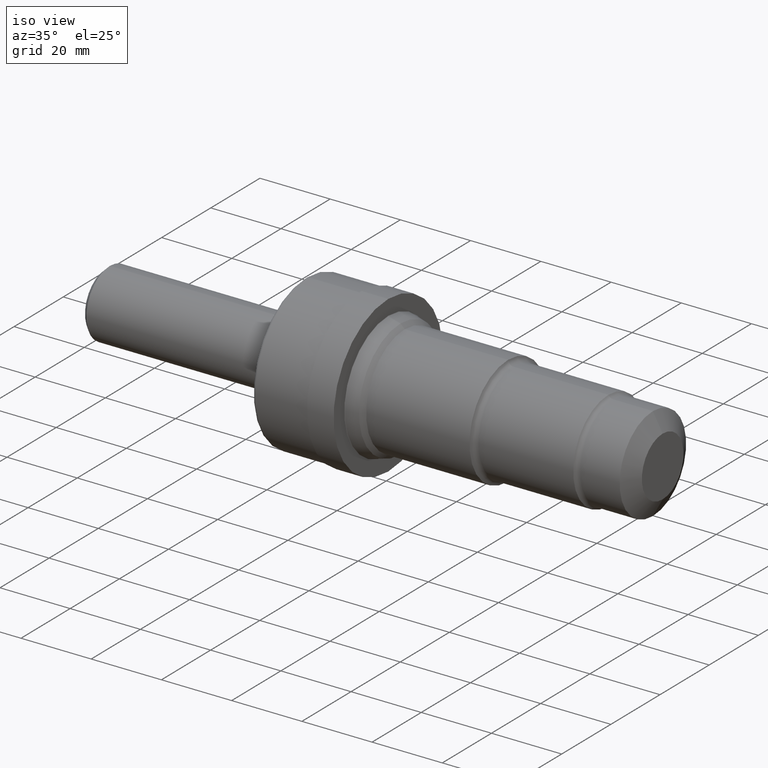
[diagram: clean part render]
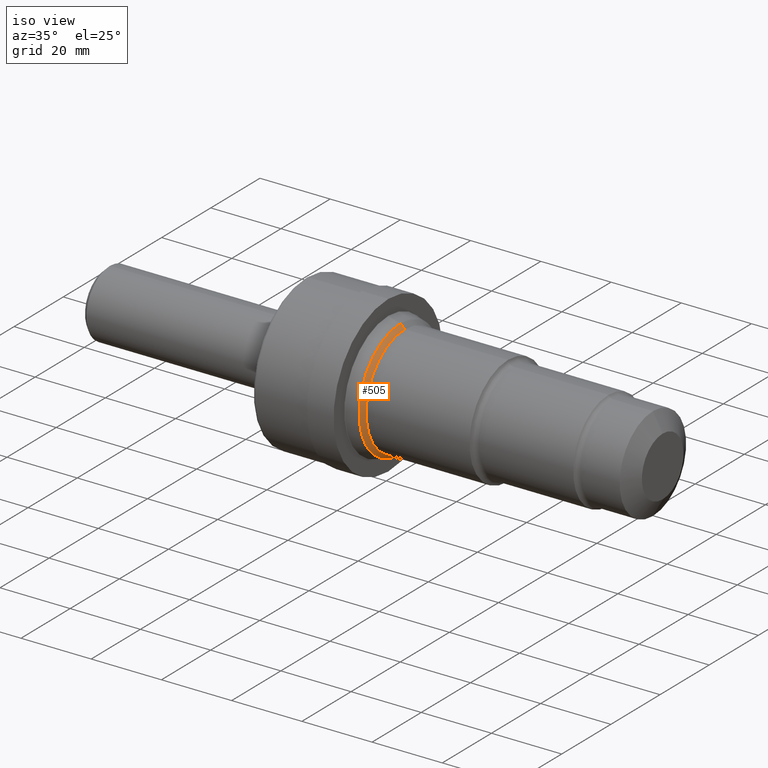
[diagram: same view with one face highlighted and labeled with its STEP entity id]
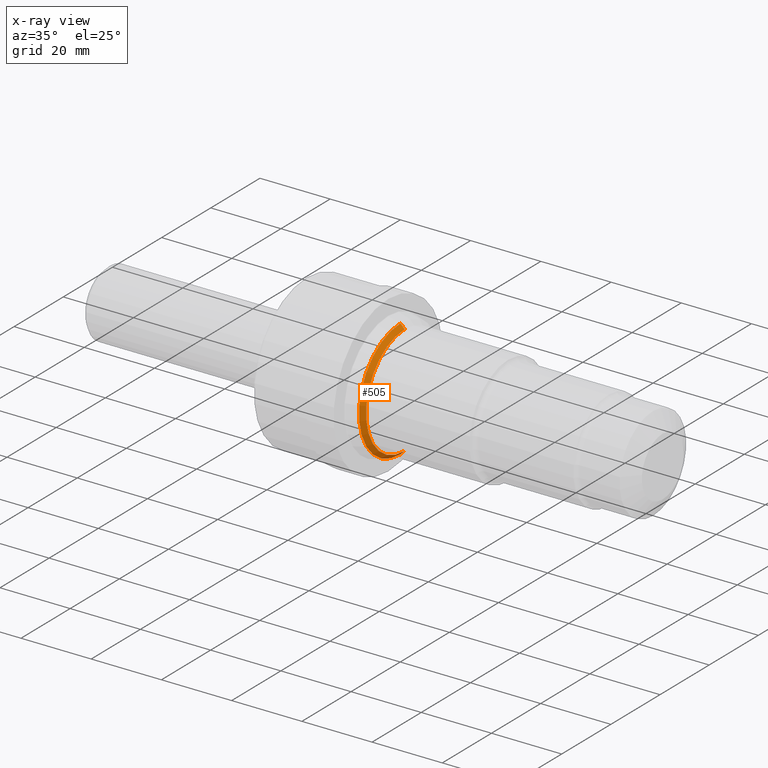
[diagram: x-ray of the same camera — body ghosted, the highlighted face saturated]
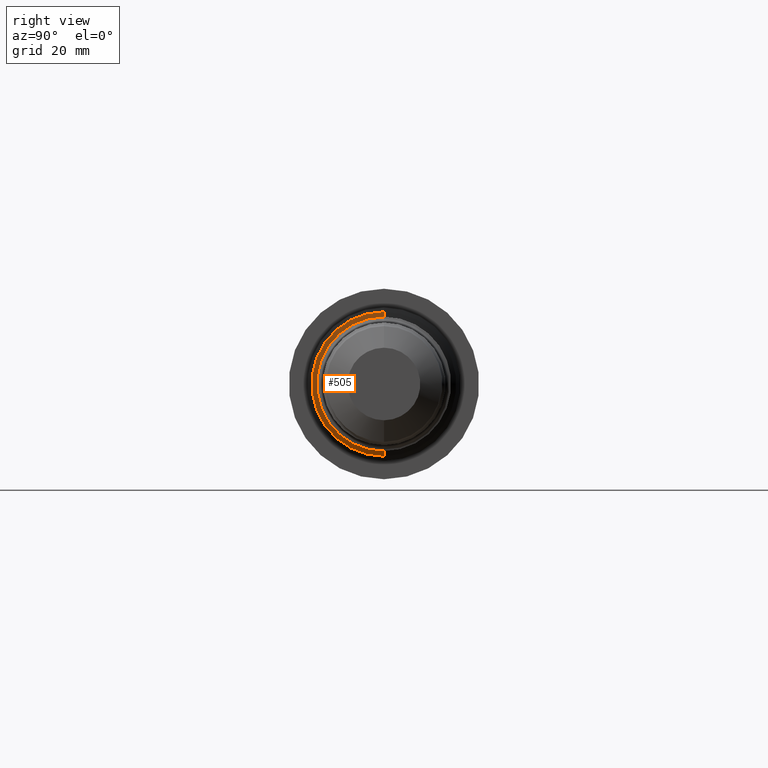
[diagram: same view with one face highlighted and labeled with its STEP entity id]
A machine part, iso view. The second image highlights one B-rep face of the part: STEP entity #505.
The next image is the same camera in x-ray: the body ghosted, the highlighted face saturated — about 0% of this face is hidden behind the body in this view.
A second angle (right view) of the same face is appended — the face is thin or edge-on in the first view.
In plain terms, the highlighted conical surface has half-angle 45 deg.
Its self-contained STEP definition (entity closure, byte-faithful):
#54 = VERTEX_POINT ( 'NONE', #85 ) ;
#55 = AXIS2_PLACEMENT_3D ( 'NONE', #92, #847, #636 ) ;
#85 = CARTESIAN_POINT ( 'NONE',  ( 3.356523011444505045, 0.0000000000000000000, 0.6169999999999999929 ) ) ;
#92 = CARTESIAN_POINT ( 'NONE',  ( 3.356523011444505045, 0.0000000000000000000, 0.0000000000000000000 ) ) ;
#122 = EDGE_CURVE ( 'NONE', #54, #939, #446, .T. ) ;
#129 = VECTOR ( 'NONE', #356, 39.37007874015748854 ) ;
#132 = CONICAL_SURFACE ( 'NONE', #55, 0.6169999999999999929, 0.7853981633974497223 ) ;
#141 = CARTESIAN_POINT ( 'NONE',  ( 3.310000000000000497, 0.0000000000000000000, 0.6635230114445048732 ) ) ;
#152 = DIRECTION ( 'NONE',  ( -1.000000000000000000, -0.0000000000000000000, -0.0000000000000000000 ) ) ;
#160 = ORIENTED_EDGE ( 'NONE', *, *, #739, .F. ) ;
#214 = CIRCLE ( 'NONE', #715, 0.6635230114445048732 ) ;
#241 = VECTOR ( 'NONE', #338, 39.37007874015748854 ) ;
#247 = ORIENTED_EDGE ( 'NONE', *, *, #122, .T. ) ;
#321 = VERTEX_POINT ( 'NONE', #829 ) ;
#330 = EDGE_CURVE ( 'NONE', #540, #54, #823, .T. ) ;
#333 = ORIENTED_EDGE ( 'NONE', *, *, #699, .F. ) ;
#338 = DIRECTION ( 'NONE',  ( -0.7071067811865464625, 8.659560562354943952E-17, -0.7071067811865484609 ) ) ;
#356 = DIRECTION ( 'NONE',  ( -0.7071067811865464625, 0.0000000000000000000, 0.7071067811865484609 ) ) ;
#358 = CARTESIAN_POINT ( 'NONE',  ( 3.356523011444505045, 7.556070750739168581E-17, -0.6169999999999999929 ) ) ;
#377 = EDGE_LOOP ( 'NONE', ( #333, #905, #247, #160 ) ) ;
#446 = LINE ( 'NONE', #594, #129 ) ;
#447 = LINE ( 'NONE', #358, #241 ) ;
#505 = ADVANCED_FACE ( 'NONE', ( #764 ), #132, .T. ) ;
#512 = DIRECTION ( 'NONE',  ( 0.0000000000000000000, 0.0000000000000000000, 1.000000000000000000 ) ) ;
#540 = VERTEX_POINT ( 'NONE', #701 ) ;
#545 = DIRECTION ( 'NONE',  ( -1.000000000000000000, -0.0000000000000000000, -0.0000000000000000000 ) ) ;
#594 = CARTESIAN_POINT ( 'NONE',  ( 3.356523011444505045, 0.0000000000000000000, 0.6169999999999999929 ) ) ;
#613 = CARTESIAN_POINT ( 'NONE',  ( 3.356523011444505045, 0.0000000000000000000, 0.0000000000000000000 ) ) ;
#636 = DIRECTION ( 'NONE',  ( 0.0000000000000000000, 0.0000000000000000000, 1.000000000000000000 ) ) ;
#686 = CARTESIAN_POINT ( 'NONE',  ( 3.310000000000000497, 0.0000000000000000000, 0.0000000000000000000 ) ) ;
#689 = DIRECTION ( 'NONE',  ( 0.0000000000000000000, 0.0000000000000000000, 1.000000000000000000 ) ) ;
#699 = EDGE_CURVE ( 'NONE', #540, #321, #447, .T. ) ;
#701 = CARTESIAN_POINT ( 'NONE',  ( 3.356523011444505045, 7.840942036000211675E-17, -0.6169999999999999929 ) ) ;
#715 = AXIS2_PLACEMENT_3D ( 'NONE', #686, #545, #512 ) ;
#739 = EDGE_CURVE ( 'NONE', #321, #939, #214, .T. ) ;
#764 = FACE_OUTER_BOUND ( 'NONE', #377, .T. ) ;
#778 = AXIS2_PLACEMENT_3D ( 'NONE', #613, #152, #689 ) ;
#823 = CIRCLE ( 'NONE', #778, 0.6169999999999999929 ) ;
#829 = CARTESIAN_POINT ( 'NONE',  ( 3.310000000000000497, 8.342503537378198228E-17, -0.6635230114445048732 ) ) ;
#847 = DIRECTION ( 'NONE',  ( -1.000000000000000000, -0.0000000000000000000, -0.0000000000000000000 ) ) ;
#905 = ORIENTED_EDGE ( 'NONE', *, *, #330, .T. ) ;
#939 = VERTEX_POINT ( 'NONE', #141 ) ;